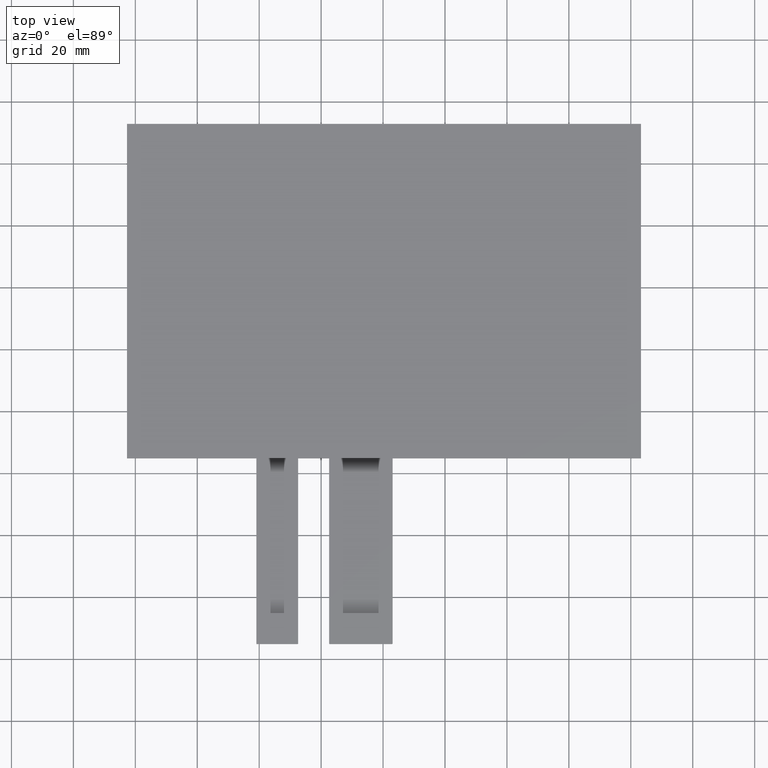
[diagram: clean part render]
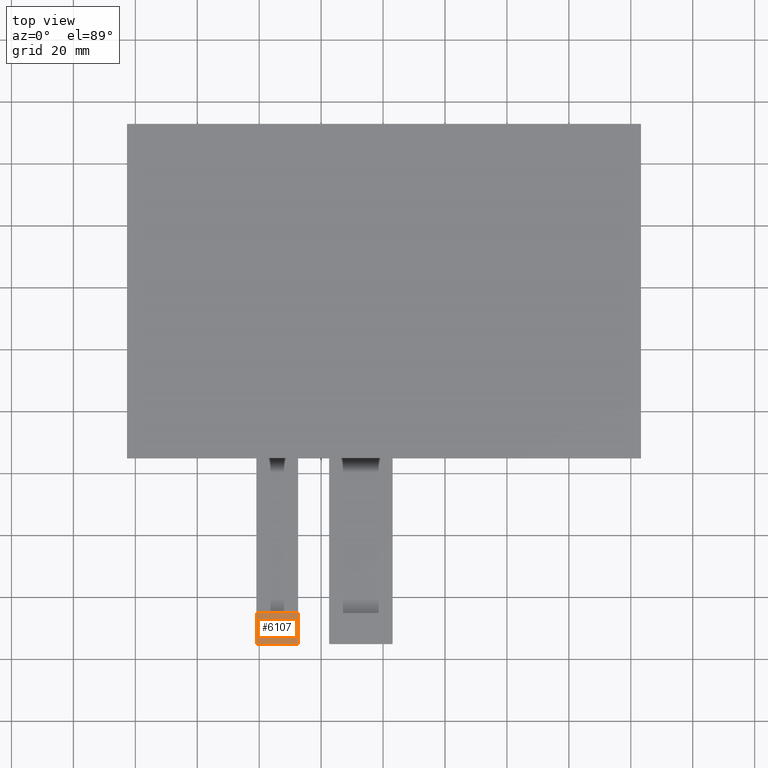
[diagram: same view with one face highlighted and labeled with its STEP entity id]
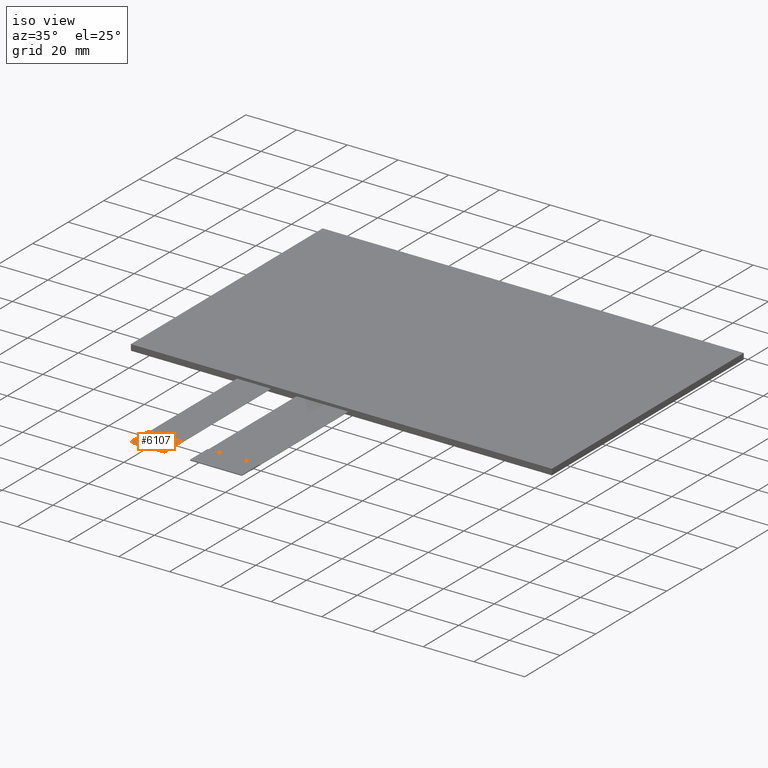
[diagram: same view with one face highlighted and labeled with its STEP entity id]
A machine part, top view. The second image highlights one B-rep face of the part: STEP entity #6107.
A second angle (iso view) of the same face is appended — the face is thin or edge-on in the first view.
In plain terms, the highlighted planar face has unit normal (0, 0, 1).
Its self-contained STEP definition (entity closure, byte-faithful):
#337=PLANE('',#6427);
#629=FACE_OUTER_BOUND('',#921,.T.);
#921=EDGE_LOOP('',(#5757,#5758,#5759,#5760,#5761,#5762));
#1113=LINE('',#8270,#1969);
#1754=LINE('',#9556,#2610);
#1768=LINE('',#9584,#2624);
#1770=LINE('',#9587,#2626);
#1969=VECTOR('',#6647,10.);
#2610=VECTOR('',#7828,10.);
#2624=VECTOR('',#7850,10.);
#2626=VECTOR('',#7854,10.);
#2651=CIRCLE('',#6149,0.2);
#2654=CIRCLE('',#6155,0.2);
#2827=VERTEX_POINT('',#8252);
#2828=VERTEX_POINT('',#8253);
#2834=VERTEX_POINT('',#8269);
#2940=VERTEX_POINT('',#8483);
#3209=VERTEX_POINT('',#9555);
#3219=VERTEX_POINT('',#9583);
#3407=EDGE_CURVE('',#2827,#2828,#2651,.T.);
#3415=EDGE_CURVE('',#2834,#2828,#1113,.T.);
#3522=EDGE_CURVE('',#2834,#2940,#2654,.T.);
#4058=EDGE_CURVE('',#3209,#2940,#1754,.T.);
#4072=EDGE_CURVE('',#3219,#3209,#1768,.T.);
#4074=EDGE_CURVE('',#2827,#3219,#1770,.T.);
#5757=ORIENTED_EDGE('',*,*,#3407,.F.);
#5758=ORIENTED_EDGE('',*,*,#4074,.T.);
#5759=ORIENTED_EDGE('',*,*,#4072,.T.);
#5760=ORIENTED_EDGE('',*,*,#4058,.T.);
#5761=ORIENTED_EDGE('',*,*,#3522,.F.);
#5762=ORIENTED_EDGE('',*,*,#3415,.T.);
#6107=ADVANCED_FACE('',(#629),#337,.T.);
#6149=AXIS2_PLACEMENT_3D('',#8254,#6633,#6634);
#6155=AXIS2_PLACEMENT_3D('',#8484,#6757,#6758);
#6427=AXIS2_PLACEMENT_3D('',#9586,#7852,#7853);
#6633=DIRECTION('center_axis',(0.,0.,-1.));
#6634=DIRECTION('ref_axis',(0.707106781186563,-0.707106781186532,0.));
#6647=DIRECTION('',(1.,0.,0.));
#6757=DIRECTION('center_axis',(0.,0.,-1.));
#6758=DIRECTION('ref_axis',(-0.707106781186548,-0.707106781186548,0.));
#7828=DIRECTION('',(0.,-1.,0.));
#7850=DIRECTION('',(-1.,0.,0.));
#7852=DIRECTION('center_axis',(0.,0.,1.));
#7853=DIRECTION('ref_axis',(1.,0.,0.));
#7854=DIRECTION('',(4.44089209850063E-16,1.,0.));
#8252=CARTESIAN_POINT('',(-27.42,-114.92,-0.8));
#8253=CARTESIAN_POINT('',(-27.62,-115.12,-0.8));
#8254=CARTESIAN_POINT('Origin',(-27.62,-114.92,-0.8));
#8269=CARTESIAN_POINT('',(-40.72,-115.12,-0.8));
#8270=CARTESIAN_POINT('',(-40.92,-115.12,-0.8));
#8483=CARTESIAN_POINT('',(-40.92,-114.92,-0.8));
#8484=CARTESIAN_POINT('Origin',(-40.72,-114.92,-0.8));
#9555=CARTESIAN_POINT('',(-40.92,-105.12,-0.8));
#9556=CARTESIAN_POINT('',(-40.92,-105.12,-0.8));
#9583=CARTESIAN_POINT('',(-27.42,-105.12,-0.8));
#9584=CARTESIAN_POINT('',(-27.42,-105.12,-0.8));
#9586=CARTESIAN_POINT('Origin',(-34.17,-110.12,-0.8));
#9587=CARTESIAN_POINT('',(-27.42,-115.12,-0.8));